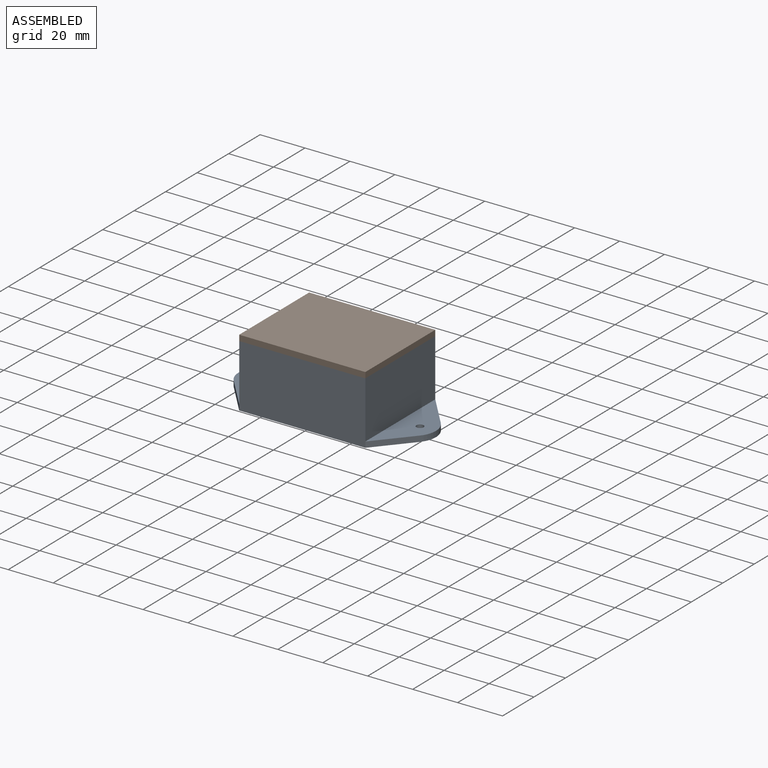
[diagram: assembled view]
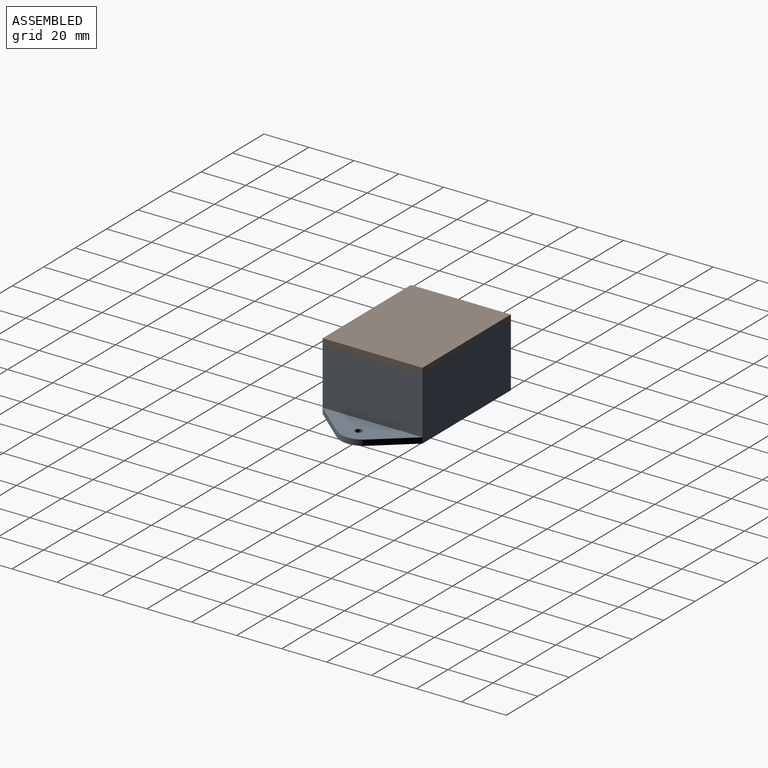
[diagram: assembled view, second angle]
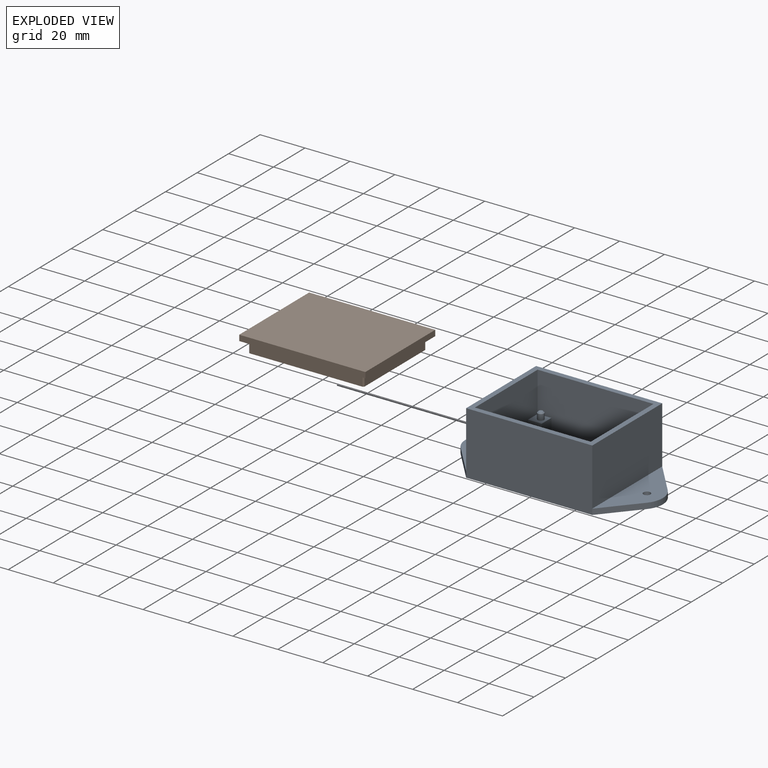
[diagram: exploded view]
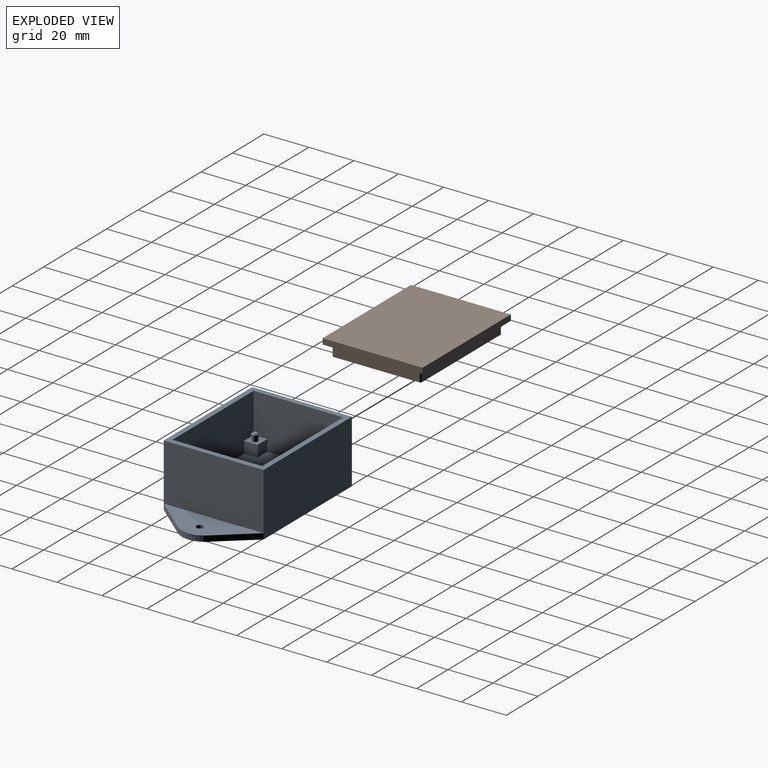
[diagram: exploded view, second angle]
ASSEMBLY  parts=2 mates=3
PART A: 45 faces, bbox 87.8x44.5x27.9 mm
  f0: plane 87.79x44.45mm, normal (0,0,-1), area 3295.4mm2, adj f8,f10,f35,f36,f37,f39,f40,f41
  f1: plane 51.56x39.88mm, normal (0,0,1), area 1907.5mm2, adj f2,f3,f4,f5,f11,f12,f14,f15
  f2: plane 39.88x22.86mm, normal (-1,0,0), area 849.7mm2, adj f1,f3,f5,f6,f14,f16,f21,f22
  f3: plane 51.56x22.86mm, normal (0,1,0), area 1116.8mm2, adj f1,f2,f4,f6,f17,f19,f20,f22
  f4: plane 39.88x22.86mm, normal (1,0,0), area 849.7mm2, adj f1,f3,f5,f6,f12,f13,f18,f19
  f5: plane 51.56x22.86mm, normal (0,-1,0), area 1116.8mm2, adj f1,f2,f4,f6,f11,f13,f15,f16
  f6: plane 56.13x44.45mm, normal (0,0,1), area 439mm2, adj f2,f3,f4,f5,f7,f8,f9,f10
  f7: plane 44.45x25.4mm, normal (1,0,0), area 1129mm2, adj f6,f8,f10,f38
  f8: plane 56.13x27.94mm, normal (0,1,0), area 1568.4mm2, adj f0,f6,f7,f9,f35,f41
  f9: plane 44.45x25.4mm, normal (-1,0,0), area 1129mm2, adj f6,f8,f10,f42
  f10: plane 56.13x27.94mm, normal (0,-1,0), area 1568.4mm2, adj f0,f6,f7,f9,f37,f39
  f11: plane 6.1x5.08mm, normal (1,0,0), area 31mm2, adj f1,f5,f12,f13
  f12: plane 6.1x5.08mm, normal (0,-1,0), area 31mm2, adj f1,f4,f11,f13
  f13: plane 6.1x6.1mm, normal (0,0,1), area 31mm2, adj f4,f5,f11,f12,f23
  f14: plane 6.1x5.08mm, normal (0,-1,0), area 31mm2, adj f1,f2,f15,f16
  f15: plane 6.1x5.08mm, normal (-1,0,0), area 31mm2, adj f1,f5,f14,f16
  f16: plane 6.1x6.1mm, normal (0,0,1), area 31mm2, adj f2,f5,f14,f15,f25
  f17: plane 6.1x5.08mm, normal (1,0,0), area 31mm2, adj f1,f3,f18,f19
  f18: plane 6.1x5.08mm, normal (0,1,0), area 31mm2, adj f1,f4,f17,f19
  f19: plane 6.1x6.1mm, normal (0,0,1), area 31mm2, adj f3,f4,f17,f18,f29
  f20: plane 6.1x5.08mm, normal (-1,0,0), area 31mm2, adj f1,f3,f21,f22
  f21: plane 6.1x5.08mm, normal (0,1,0), area 31mm2, adj f1,f2,f20,f22
  f22: plane 6.1x6.1mm, normal (0,0,1), area 31mm2, adj f2,f3,f20,f21,f27
  f23: cylinder r=1.4mm len=2.79mm, axis (0,0,-1), area 23.4mm2, adj f13,f34
  f24: plane 1.78x1.78mm, normal (0,0,1), area 2.5mm2, adj f34
  f25: cylinder r=1.4mm len=2.79mm, axis (0,0,-1), area 23.4mm2, adj f16,f33
  f26: plane 1.78x1.78mm, normal (0,0,1), area 2.5mm2, adj f33
  f27: cylinder r=1.4mm len=2.79mm, axis (0,0,-1), area 23.4mm2, adj f22,f31
  f28: plane 1.78x1.78mm, normal (0,0,1), area 2.5mm2, adj f31
  f29: cylinder r=1.4mm len=2.79mm, axis (0,0,-1), area 23.4mm2, adj f19,f32
  f30: plane 1.78x1.78mm, normal (0,0,1), area 2.5mm2, adj f32
  f31: cone r=0.89mm half-angle=45deg, axis (0,0,-1), area 5.2mm2, adj f27,f28
  f32: cone r=1.4mm half-angle=45deg, axis (0,0,-1), area 5.2mm2, adj f29,f30
  f33: cone r=1.4mm half-angle=45deg, axis (0,0,-1), area 5.2mm2, adj f25,f26
  f34: cone r=0.89mm half-angle=45deg, axis (0,0,-1), area 5.2mm2, adj f23,f24
  f35: plane 15.61x13.38mm, normal (0.76,0.65,0), area 52.2mm2, adj f0,f8,f36,f38
  f36: cylinder r=10.16mm len=13.22mm, axis (0,0,-1), area 36.6mm2, adj f0,f35,f37,f38
  f37: plane 15.61x13.38mm, normal (0.76,-0.65,0), area 52.2mm2, adj f0,f10,f36,f38
  f38: plane 44.45x15.83mm, normal (0,0,1), area 400.1mm2, adj f7,f35,f36,f37,f44
  f39: plane 15.61x13.38mm, normal (-0.76,-0.65,0), area 52.2mm2, adj f0,f10,f40,f42
  f40: cylinder r=10.16mm len=13.22mm, axis (0,0,-1), area 36.6mm2, adj f0,f39,f41,f42
  f41: plane 15.61x13.38mm, normal (-0.76,0.65,0), area 52.2mm2, adj f0,f8,f40,f42
  f42: plane 44.45x15.83mm, normal (0,0,1), area 400.1mm2, adj f9,f39,f40,f41,f43
  f43: cylinder r=1.59mm len=3.18mm, axis (0,0,-1), area 25.3mm2, adj f0,f42
  f44: cylinder r=1.59mm len=3.18mm, axis (0,0,-1), area 25.3mm2, adj f0,f38
PART B: 20 faces, bbox 56.1x44.5x7.6 mm
  f0: plane 56.13x44.45mm, normal (0,0,1), area 462.6mm2, adj f1,f2,f3,f4,f9,f10,f11,f12
  f1: plane 44.45x2.54mm, normal (1,0,0), area 112.9mm2, adj f0,f2,f4,f5
  f2: plane 56.13x2.54mm, normal (0,1,0), area 142.6mm2, adj f0,f1,f3,f5
  f3: plane 44.45x2.54mm, normal (-1,0,0), area 112.9mm2, adj f0,f2,f4,f5
  f4: plane 56.13x2.54mm, normal (0,-1,0), area 142.6mm2, adj f0,f1,f3,f5
  f5: plane 56.13x44.45mm, normal (0,0,-1), area 2495.2mm2, adj f1,f2,f3,f4
  f6: plane 46.23x5.08mm, normal (0,1,0), area 234.8mm2, adj f7,f13,f14,f15
  f7: plane 34.54x5.08mm, normal (1,0,0), area 175.5mm2, adj f6,f8,f14,f15
  f8: plane 46.23x5.08mm, normal (0,-1,0), area 234.8mm2, adj f7,f13,f14,f15
  f9: plane 38.61x5.08mm, normal (-1,0,0), area 196.1mm2, adj f0,f14,f16,f19
  f10: plane 50.29x5.08mm, normal (0,-1,0), area 255.5mm2, adj f0,f14,f18,f19
  f11: plane 38.61x5.08mm, normal (1,0,0), area 196.1mm2, adj f0,f14,f17,f18
  f12: plane 50.29x5.08mm, normal (0,1,0), area 255.5mm2, adj f0,f14,f16,f17
  f13: plane 34.54x5.08mm, normal (-1,0,0), area 175.5mm2, adj f6,f8,f14,f15
  f14: plane 51.31x39.62mm, normal (0,0,1), area 435.6mm2, adj f6,f7,f8,f9,f10,f11,f12,f13
  f15: plane 46.23x34.54mm, normal (0,0,1), area 1596.9mm2, adj f6,f7,f8,f13
  f16: plane 5.08x0.51mm, normal (-0.71,0.71,0), area 3.6mm2, adj f0,f9,f12,f14
  f17: plane 5.08x0.51mm, normal (0.71,0.71,0), area 3.6mm2, adj f0,f11,f12,f14
  f18: plane 5.08x0.51mm, normal (0.71,-0.71,0), area 3.6mm2, adj f0,f10,f11,f14
  f19: plane 5.08x0.51mm, normal (-0.71,-0.71,0), area 3.6mm2, adj f0,f9,f10,f14
PLACE A t=(0.23,0.24,-13.8)mm fixed
PLACE B rot(axis=(1,0,0),180deg) t=(0.23,0.24,16.68)mm
MATE planar B.f1 <-> A.f7  axis (1,0,0) through (28.29,0.24,15.41)mm
MATE planar B.f15 <-> A.f6  axis (0,0,-1) through (0.23,0.24,14.14)mm
MATE planar B.f2 <-> A.f10  axis (0,-1,0) through (0.23,-21.98,15.41)mm
